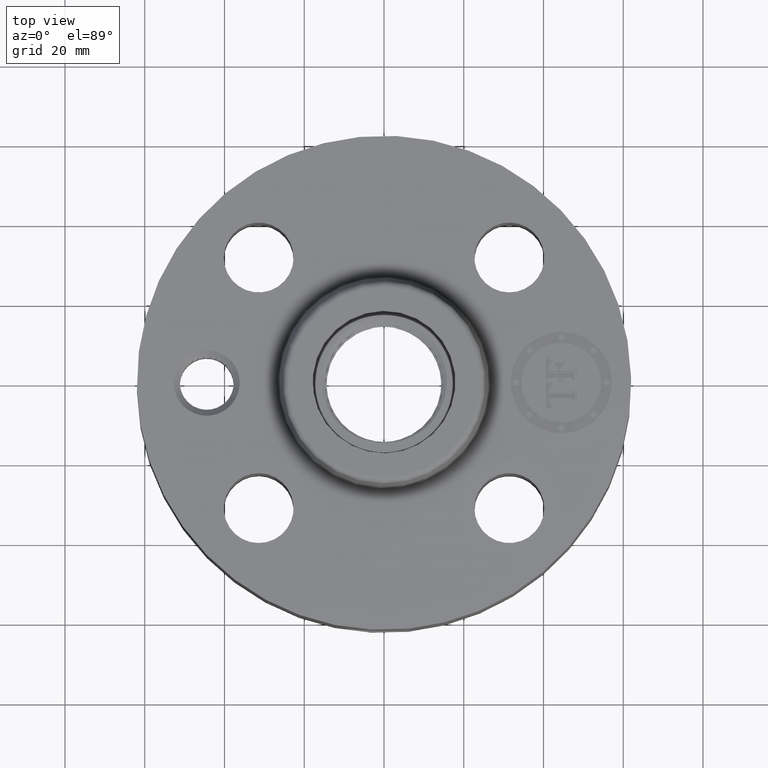
[diagram: clean part render]
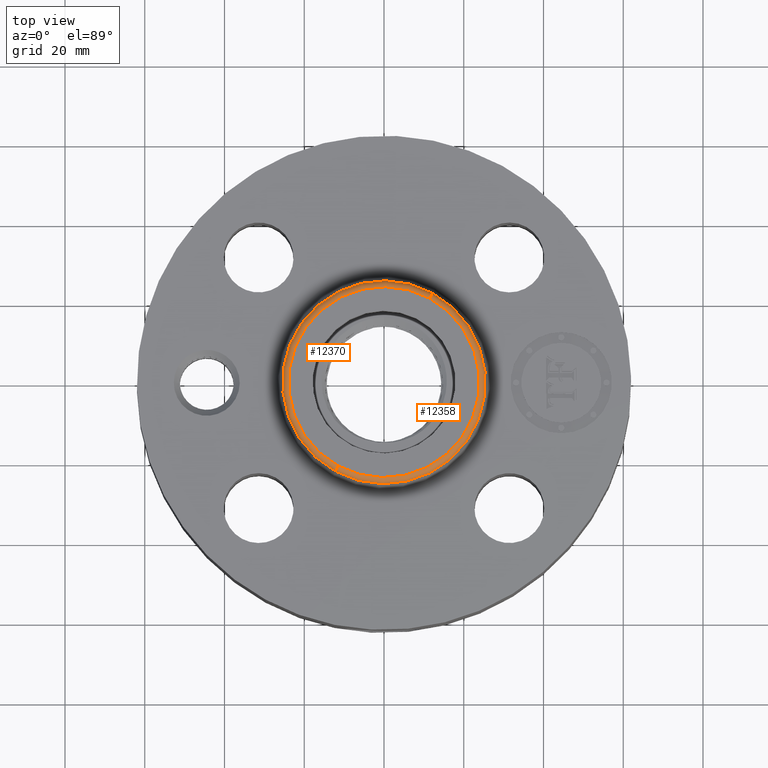
[diagram: same view with one multi-face feature highlighted, each face labeled with its STEP entity id]
A machine part, top view. The highlighted faces form ONE feature: a constant-radius fillet chain: 2 tangent blend faces with common blend radius 1.524 mm. The faces share edges in the B-rep.
Their STEP definitions:
[1] entity #12358 (Torus):
#10958=AXIS2_PLACEMENT_3D('Circle Axis2P3D',#10956,#10957,$) ;
#12331=AXIS2_PLACEMENT_3D('Torus Axis2P3D',#12328,#12329,#12330) ;
#12335=AXIS2_PLACEMENT_3D('Circle Axis2P3D',#12333,#12334,$) ;
#12342=AXIS2_PLACEMENT_3D('Circle Axis2P3D',#12340,#12341,$) ;
#12349=AXIS2_PLACEMENT_3D('Circle Axis2P3D',#12347,#12348,$) ;
#10953=CARTESIAN_POINT('Vertex',(0.480258892685,0.879108006303,2.08041889067)) ;
#10956=CARTESIAN_POINT('Axis2P3D Location',(0.,0.,2.08041889067)) ;
#10960=CARTESIAN_POINT('Vertex',(-0.480258892685,-0.879108006303,2.08041889067)) ;
#12328=CARTESIAN_POINT('Axis2P3D Location',(0.,0.,2.07000000001)) ;
#12333=CARTESIAN_POINT('Axis2P3D Location',(0.45193037344,0.827252999652,2.07000000001)) ;
#12337=CARTESIAN_POINT('Vertex',(0.45193037344,0.827252999652,2.13000000001)) ;
#12340=CARTESIAN_POINT('Axis2P3D Location',(0.,0.,2.13000000001)) ;
#12344=CARTESIAN_POINT('Vertex',(-0.45193037344,-0.827252999652,2.13000000001)) ;
#12347=CARTESIAN_POINT('Axis2P3D Location',(-0.45193037344,-0.827252999652,2.07000000001)) ;
#10957=DIRECTION('Axis2P3D Direction',(0.,0.,-0.0393700787402)) ;
#12329=DIRECTION('Axis2P3D Direction',(0.,0.,-0.0393700787402)) ;
#12330=DIRECTION('Axis2P3D XDirection',(-0.0188750212049,-0.0345504945626,0.)) ;
#12334=DIRECTION('Axis2P3D Direction',(-0.0345504945626,0.0188750212049,0.)) ;
#12341=DIRECTION('Axis2P3D Direction',(0.,0.,-0.0393700787402)) ;
#12348=DIRECTION('Axis2P3D Direction',(0.0345504945626,-0.0188750212049,0.)) ;
#12353=ORIENTED_EDGE('',*,*,#10962,.F.) ;
#12354=ORIENTED_EDGE('',*,*,#12339,.T.) ;
#12355=ORIENTED_EDGE('',*,*,#12346,.T.) ;
#12356=ORIENTED_EDGE('',*,*,#12351,.F.) ;
#12358=ADVANCED_FACE('PartBody',(#12357),#12332,.T.) ;
#10959=CIRCLE('generated circle',#10958,1.00173823464) ;
#12336=CIRCLE('generated circle',#12335,0.0600000000002) ;
#12343=CIRCLE('generated circle',#12342,0.942649769464) ;
#12350=CIRCLE('generated circle',#12349,0.0600000000002) ;
#12332=TOROIDAL_SURFACE('homeo Torus',#12331,0.942649769464,0.0600000000002) ;
#10962=EDGE_CURVE('',#10954,#10961,#10959,.T.) ;
#12339=EDGE_CURVE('',#10954,#12338,#12336,.F.) ;
#12346=EDGE_CURVE('',#12338,#12345,#12343,.T.) ;
#12351=EDGE_CURVE('',#10961,#12345,#12350,.F.) ;
#12352=EDGE_LOOP('',(#12353,#12354,#12355,#12356)) ;
#12357=FACE_OUTER_BOUND('',#12352,.T.) ;
#10954=VERTEX_POINT('',#10953) ;
#10961=VERTEX_POINT('',#10960) ;
#12338=VERTEX_POINT('',#12337) ;
#12345=VERTEX_POINT('',#12344) ;
[2] entity #12370 (Torus):
#10977=AXIS2_PLACEMENT_3D('Circle Axis2P3D',#10975,#10976,$) ;
#12331=AXIS2_PLACEMENT_3D('Torus Axis2P3D',#12328,#12329,#12330) ;
#12335=AXIS2_PLACEMENT_3D('Circle Axis2P3D',#12333,#12334,$) ;
#12349=AXIS2_PLACEMENT_3D('Circle Axis2P3D',#12347,#12348,$) ;
#12361=AXIS2_PLACEMENT_3D('Circle Axis2P3D',#12359,#12360,$) ;
#10953=CARTESIAN_POINT('Vertex',(0.480258892685,0.879108006303,2.08041889067)) ;
#10960=CARTESIAN_POINT('Vertex',(-0.480258892685,-0.879108006303,2.08041889067)) ;
#10975=CARTESIAN_POINT('Axis2P3D Location',(0.,0.,2.08041889067)) ;
#12328=CARTESIAN_POINT('Axis2P3D Location',(0.,0.,2.07000000001)) ;
#12333=CARTESIAN_POINT('Axis2P3D Location',(0.45193037344,0.827252999652,2.07000000001)) ;
#12337=CARTESIAN_POINT('Vertex',(0.45193037344,0.827252999652,2.13000000001)) ;
#12344=CARTESIAN_POINT('Vertex',(-0.45193037344,-0.827252999652,2.13000000001)) ;
#12347=CARTESIAN_POINT('Axis2P3D Location',(-0.45193037344,-0.827252999652,2.07000000001)) ;
#12359=CARTESIAN_POINT('Axis2P3D Location',(0.,0.,2.13000000001)) ;
#10976=DIRECTION('Axis2P3D Direction',(0.,0.,-0.0393700787402)) ;
#12329=DIRECTION('Axis2P3D Direction',(0.,0.,-0.0393700787402)) ;
#12330=DIRECTION('Axis2P3D XDirection',(-0.0188750212049,-0.0345504945626,0.)) ;
#12334=DIRECTION('Axis2P3D Direction',(-0.0345504945626,0.0188750212049,0.)) ;
#12348=DIRECTION('Axis2P3D Direction',(0.0345504945626,-0.0188750212049,0.)) ;
#12360=DIRECTION('Axis2P3D Direction',(0.,0.,-0.0393700787402)) ;
#12365=ORIENTED_EDGE('',*,*,#10979,.F.) ;
#12366=ORIENTED_EDGE('',*,*,#12351,.T.) ;
#12367=ORIENTED_EDGE('',*,*,#12363,.T.) ;
#12368=ORIENTED_EDGE('',*,*,#12339,.F.) ;
#12370=ADVANCED_FACE('PartBody',(#12369),#12332,.T.) ;
#10978=CIRCLE('generated circle',#10977,1.00173823464) ;
#12336=CIRCLE('generated circle',#12335,0.0600000000002) ;
#12350=CIRCLE('generated circle',#12349,0.0600000000002) ;
#12362=CIRCLE('generated circle',#12361,0.942649769464) ;
#12332=TOROIDAL_SURFACE('homeo Torus',#12331,0.942649769464,0.0600000000002) ;
#10979=EDGE_CURVE('',#10961,#10954,#10978,.T.) ;
#12339=EDGE_CURVE('',#10954,#12338,#12336,.F.) ;
#12351=EDGE_CURVE('',#10961,#12345,#12350,.F.) ;
#12363=EDGE_CURVE('',#12345,#12338,#12362,.T.) ;
#12364=EDGE_LOOP('',(#12365,#12366,#12367,#12368)) ;
#12369=FACE_OUTER_BOUND('',#12364,.T.) ;
#10954=VERTEX_POINT('',#10953) ;
#10961=VERTEX_POINT('',#10960) ;
#12338=VERTEX_POINT('',#12337) ;
#12345=VERTEX_POINT('',#12344) ;